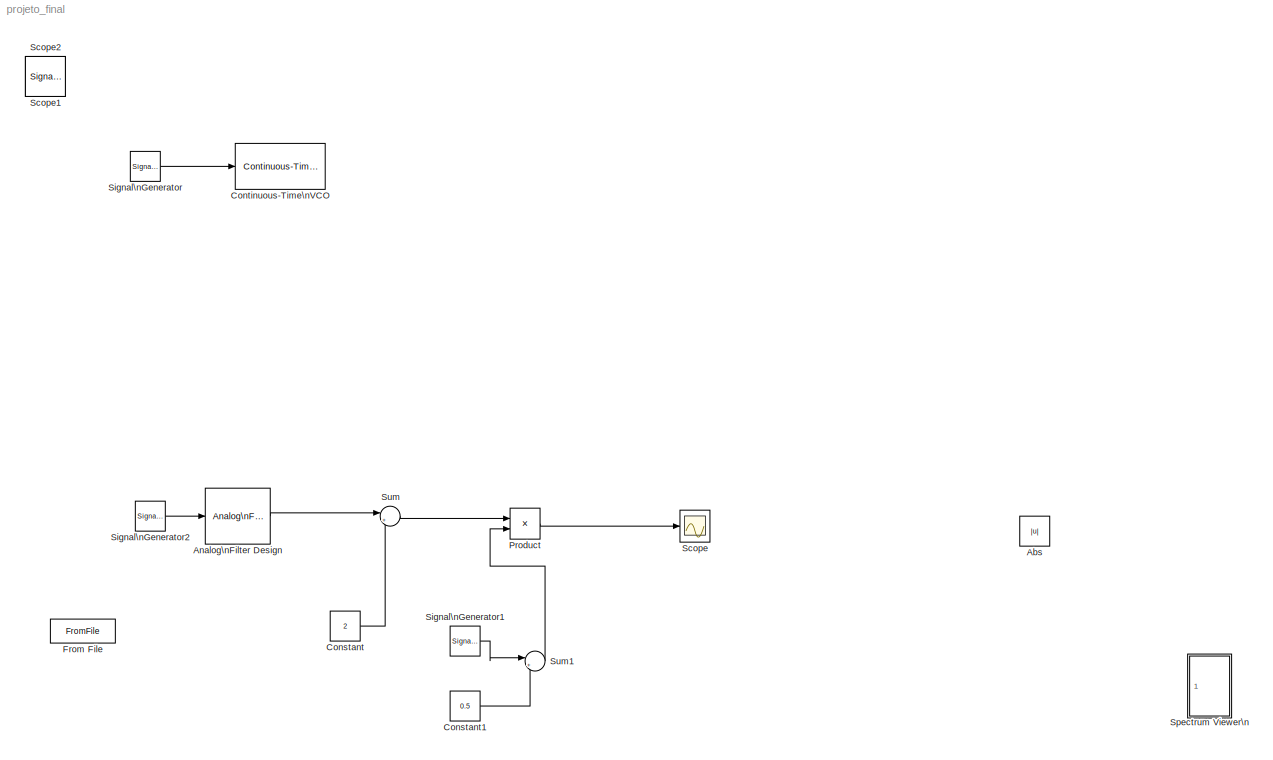
MODEL projeto_final
KIND model
BLOCK [Abs] Abs
  SaturateOnIntegerOverflow = off
BLOCK [Reference] Analog\nFilter Design  REF=dsparch4/Analog\nFilter Design
  N = 10
  Ports = [1, 1]
  Rp = 2
  Rs = 40
  SourceBlock = dsparch4/Analog\nFilter Design
  SourceType = Analog Filter Design
  Whi = 80
  Wlo = 2*pi*5e3
  filttype = Lowpass
  method = Butterworth
BLOCK [Constant] Constant
  Value = 2
BLOCK [Constant] Constant1
  Value = 0.5
BLOCK [Reference] Continuous-Time\nVCO  REF=commsynccomp2/Continuous-Time\nVCO
  Ac = 1
  Fc = 1e5
  Kc = 40e3
  Ph = 0
  Ports = [1, 1]
  ShowPortLabels = on
  SourceBlock = commsynccomp2/Continuous-Time\nVCO
  SourceType = Continuous-Time VCO
BLOCK [FromFile] From File
  FileName = mario_dados.mat
  SampleTime = 0
BLOCK [Product] Product
  InputSameDT = off
  OutDataTypeMode = Inherit via internal rule
  Ports = [2, 1]
  SaturateOnIntegerOverflow = off
BLOCK [Scope] Scope
  DataFormat = StructureWithTime
  Floating = off
  LimitDataPoints = off
  NumInputPorts = 1
  Ports = [1]
  SampleTime = 0
  ZoomMode = xonly
BLOCK [SignalViewerScope] Scope1
  DataFormat = Array
  Disabled = off
  IOType = viewer
  MaxDataPoints = 7500
  NumInputPorts = 1
  Ports = []
  RefreshTime = 0.035000
  ShowDataMarkers = off
  ShowLegends = off
BLOCK [SignalViewerScope] Scope2
  DataFormat = Array
  Disabled = off
  IOType = viewer
  MaxDataPoints = 7500
  NumInputPorts = 1
  Ports = []
  RefreshTime = 0.035000
  SaveName = ScopeData1
  ShowDataMarkers = off
  ShowLegends = off
BLOCK [SignalGenerator] Signal\nGenerator
  Frequency = 1e3
  Ports = [0, 1]
  WaveForm = square
BLOCK [SignalGenerator] Signal\nGenerator1
  Amplitude = 0.5
  Frequency = 1e5
  Ports = [0, 1]
  WaveForm = square
BLOCK [SignalGenerator] Signal\nGenerator2
  Frequency = 1e3
  Ports = [0, 1]
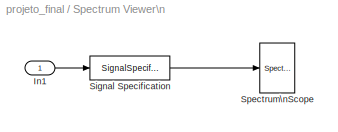
BLOCK [SubSystem] Spectrum Viewer\n
  MaskHideContents = off
  MinAlgLoopOccurrences = off
  Ports = [1]
  RTWSystemCode = Auto
  TreatAsAtomicUnit = off
BLOCK [Inport] Spectrum Viewer\n/In1
  IconDisplay = Port number
BLOCK [SignalSpecification] Spectrum Viewer\n/Signal Specification
  SampleTime = 1e-7
BLOCK [Reference] Spectrum Viewer\n/Spectrum\nScope  REF=dspsnks4/Spectrum\nScope
  AxisGrid = on
  AxisLegend = off
  AxisProperties = off
  AxisZoom = off
  BufferSize = 1024
  DialogController = dspdialog.SpectrumScope
  DialogControllerArgs = DataTag0
  DisplayProperties = off
  Domain = Frequency
  FFTlength = 128
  FigPos = get(0,'defaultfigureposition')
  FrameNumber = on
  HorizSpan = 1
  InheritXIncr = on
  LineProperties = off
  Memory = off
  OpenScopeAtSimStart = on
  OpenScopeImmediately = off
  Overlap = 64
  Ports = [1]
  RsSpecScope = 50
  ScopeProperties = on
  ShowPortLabels = off
  SourceBlock = dspsnks4/Spectrum\nScope
  SourceType = Spectrum Scope
  UseBuffer = on
  XIncr = 1.0
  XLabel = Samples
  XRange = [-Fs/2...Fs/2]
  XUnits = Hertz
  YLabel = Magnitude-squared, dB
  YMax = 20.0792208914918
  YMin = -152.32674781566
  YUnits = dB
  betaSpecScope = 5
  inpFftLenInherit = off
  numAvg = 200
  winsampSpecScope = Periodic
  wintypeSpecScope = Hann
BLOCK [Sum] Sum
  IconShape = round
  InputSameDT = off
  Inputs = |++
  OutDataTypeMode = Inherit via internal rule
  Ports = [2, 1]
  SaturateOnIntegerOverflow = off
BLOCK [Sum] Sum1
  IconShape = round
  InputSameDT = off
  Inputs = |++
  OutDataTypeMode = Inherit via internal rule
  Ports = [2, 1]
  SaturateOnIntegerOverflow = off
LINE Analog\nFilter Design:1 -> Sum:1
LINE Constant1:1 -> Sum1:2
LINE Constant:1 -> Sum:2
LINE Product:1 -> Scope:1
LINE Signal\nGenerator1:1 -> Sum1:1
LINE Signal\nGenerator2:1 -> Analog\nFilter Design:1
LINE Signal\nGenerator:1 -> Continuous-Time\nVCO:1
LINE Spectrum Viewer\n/In1:1 -> Spectrum Viewer\n/Signal Specification:1
LINE Spectrum Viewer\n/Signal Specification:1 -> Spectrum Viewer\n/Spectrum\nScope:1
LINE Sum1:1 -> Product:2
LINE Sum:1 -> Product:1
